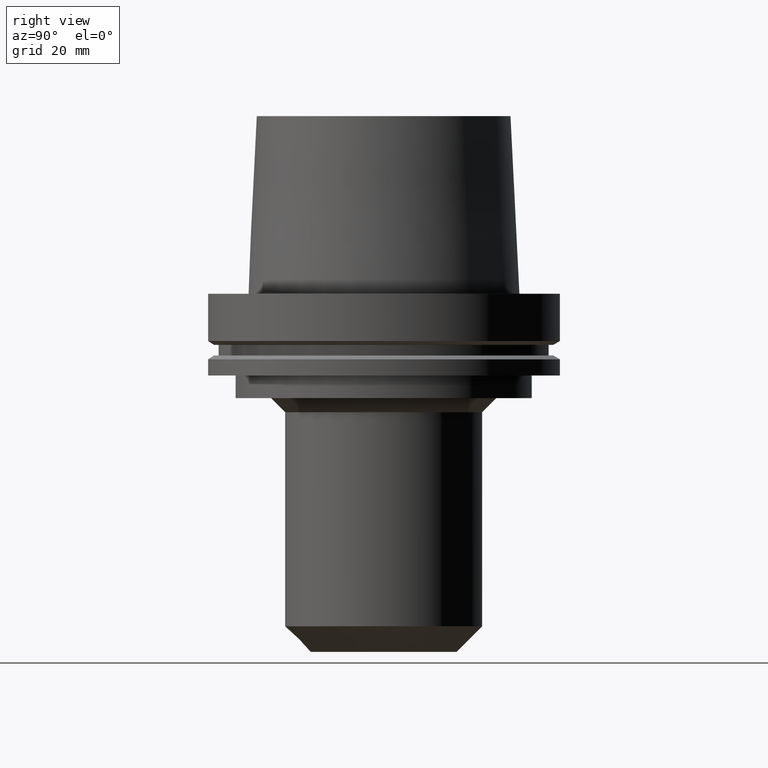
[diagram: clean part render]
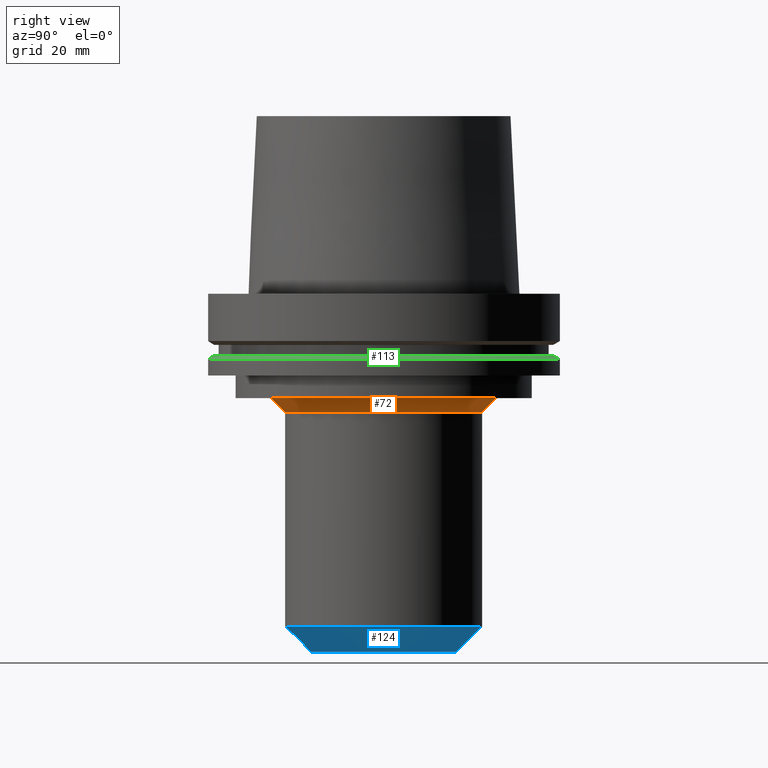
[diagram: same view with three faces highlighted in distinct colors, each labeled with its STEP entity id]
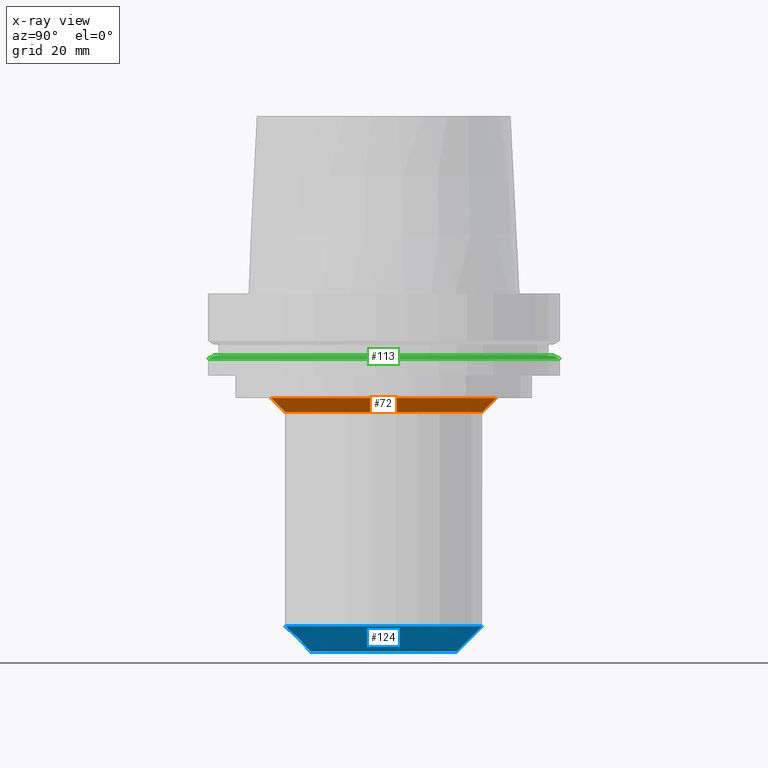
[diagram: x-ray of the same camera — body ghosted, the three highlighted faces saturated]
A machine part, right view with three faces highlighted in distinct colors.
The next image is the same camera in x-ray (body ghosted, the three faces saturated) — at least one of them is partly hidden behind the body in this view.
Their STEP definitions:

[orange] entity #72 — the highlighted conical surface has half-angle 45 deg.
#72=ADVANCED_FACE('Unnamed[1]',(#182,#183),#184,.T.);
#91=EDGE_CURVE('Unnamed[1]',#213,#213,#214,.T.);
#121=EDGE_CURVE('Unnamed[1]',#258,#258,#259,.T.);
#182=FACE_BOUND('',#328,.T.);
#183=FACE_BOUND('',#329,.T.);
#184=CONICAL_SURFACE('',#330,37.4250000000001,0.785398163397454);
#213=VERTEX_POINT('',#367);
#214=CIRCLE('',#368,39.9250000000002);
#258=VERTEX_POINT('',#422);
#259=CIRCLE('',#423,34.925);
#328=EDGE_LOOP('',(#492));
#329=EDGE_LOOP('',(#493));
#330=AXIS2_PLACEMENT_3D('',#494,#495,#496);
#367=CARTESIAN_POINT('',(2.26559657842261E-015,39.9250000000002,-37.0000000000001));
#368=AXIS2_PLACEMENT_3D('',#527,#528,#529);
#422=CARTESIAN_POINT('',(2.57175827820945E-015,34.925,-42.0000000000002));
#423=AXIS2_PLACEMENT_3D('',#577,#578,#579);
#492=ORIENTED_EDGE('',*,*,#121,.F.);
#493=ORIENTED_EDGE('',*,*,#91,.T.);
#494=CARTESIAN_POINT('',(2.41867742831603E-015,4.83735485663206E-015,-39.5000000000001));
#495=DIRECTION('',(-6.12323399573677E-017,-1.22464679914735E-016,1.0));
#496=DIRECTION('',(-1.23259516440783E-032,1.0,1.22464679914735E-016));
#527=CARTESIAN_POINT('',(2.26559657842261E-015,4.53119315684521E-015,-37.0000000000001));
#528=DIRECTION('',(6.12323399573677E-017,1.22464679914735E-016,-1.0));
#529=DIRECTION('',(-1.23259516440783E-032,1.0,1.22464679914735E-016));
#577=CARTESIAN_POINT('',(2.57175827820945E-015,5.14351655641891E-015,-42.0000000000002));
#578=DIRECTION('',(6.12323399573677E-017,1.22464679914735E-016,-1.0));
#579=DIRECTION('',(-1.23259516440783E-032,1.0,1.22464679914735E-016));

[blue] entity #124 — the highlighted conical surface has half-angle 45 deg.
#69=EDGE_CURVE('Unnamed[1]',#178,#178,#179,.T.);
#93=EDGE_CURVE('Unnamed[1]',#216,#216,#217,.T.);
#124=ADVANCED_FACE('Unnamed[1]',(#262,#263),#264,.T.);
#178=VERTEX_POINT('',#323);
#179=CIRCLE('',#324,34.9249999999998);
#216=VERTEX_POINT('',#371);
#217=CIRCLE('',#372,25.8249999999995);
#262=FACE_BOUND('',#427,.T.);
#263=FACE_BOUND('',#428,.T.);
#264=CONICAL_SURFACE('',#429,30.3749999999997,0.785398163397452);
#323=CARTESIAN_POINT('',(7.21929288097362E-015,34.9249999999999,-117.9));
#324=AXIS2_PLACEMENT_3D('',#488,#489,#490);
#371=CARTESIAN_POINT('',(7.77650717458569E-015,25.8249999999995,-127.0));
#372=AXIS2_PLACEMENT_3D('',#530,#531,#532);
#427=EDGE_LOOP('',(#581));
#428=EDGE_LOOP('',(#582));
#429=AXIS2_PLACEMENT_3D('',#583,#584,#585);
#488=CARTESIAN_POINT('',(7.21929288097362E-015,1.44385857619472E-014,-117.9));
#489=DIRECTION('',(6.12323399573677E-017,1.22464679914735E-016,-1.0));
#490=DIRECTION('',(-1.23259516440783E-032,1.0,1.22464679914735E-016));
#530=CARTESIAN_POINT('',(7.77650717458569E-015,1.55530143491714E-014,-127.0));
#531=DIRECTION('',(6.12323399573677E-017,1.22464679914735E-016,-1.0));
#532=DIRECTION('',(-1.23259516440783E-032,1.0,1.22464679914735E-016));
#581=ORIENTED_EDGE('',*,*,#93,.F.);
#582=ORIENTED_EDGE('',*,*,#69,.T.);
#583=CARTESIAN_POINT('',(7.49790002777965E-015,1.49958000555593E-014,-122.45));
#584=DIRECTION('',(-6.12323399573677E-017,-1.22464679914735E-016,1.0));
#585=DIRECTION('',(-1.23259516440783E-032,1.0,1.22464679914735E-016));

[green] entity #113 — the highlighted conical surface has half-angle 60 deg.
#79=EDGE_CURVE('Unnamed[1]',#194,#194,#195,.T.);
#107=EDGE_CURVE('Unnamed[1]',#236,#236,#237,.T.);
#113=ADVANCED_FACE('Unnamed[1]',(#245,#246),#247,.T.);
#194=VERTEX_POINT('',#343);
#195=CIRCLE('',#344,60.122595264194);
#236=VERTEX_POINT('',#395);
#237=CIRCLE('',#396,62.5);
#245=FACE_BOUND('',#406,.T.);
#246=FACE_BOUND('',#407,.T.);
#247=CONICAL_SURFACE('',#408,61.311297632097,1.04719755119646);
#343=CARTESIAN_POINT('',(1.33945743656747E-015,60.122595264194,-21.8750000000009));
#344=AXIS2_PLACEMENT_3D('',#506,#507,#508);
#395=CARTESIAN_POINT('',(1.42350465640827E-015,62.5,-23.2475952641916));
#396=AXIS2_PLACEMENT_3D('',#551,#552,#553);
#406=EDGE_LOOP('',(#561));
#407=EDGE_LOOP('',(#562));
#408=AXIS2_PLACEMENT_3D('',#563,#564,#565);
#506=CARTESIAN_POINT('',(1.33945743656747E-015,2.67891487313494E-015,-21.8750000000009));
#507=DIRECTION('',(6.12323399573677E-017,1.22464679914735E-016,-1.0));
#508=DIRECTION('',(-1.23259516440783E-032,1.0,1.22464679914735E-016));
#551=CARTESIAN_POINT('',(1.42350465640827E-015,2.84700931281654E-015,-23.2475952641916));
#552=DIRECTION('',(6.12323399573677E-017,1.22464679914735E-016,-1.0));
#553=DIRECTION('',(-1.23259516440783E-032,1.0,1.22464679914735E-016));
#561=ORIENTED_EDGE('',*,*,#107,.F.);
#562=ORIENTED_EDGE('',*,*,#79,.T.);
#563=CARTESIAN_POINT('',(1.38148104648787E-015,2.76296209297574E-015,-22.5612976320962));
#564=DIRECTION('',(6.12323399573677E-017,1.22464679914735E-016,-1.0));
#565=DIRECTION('',(-1.23259516440783E-032,1.0,1.22464679914735E-016));